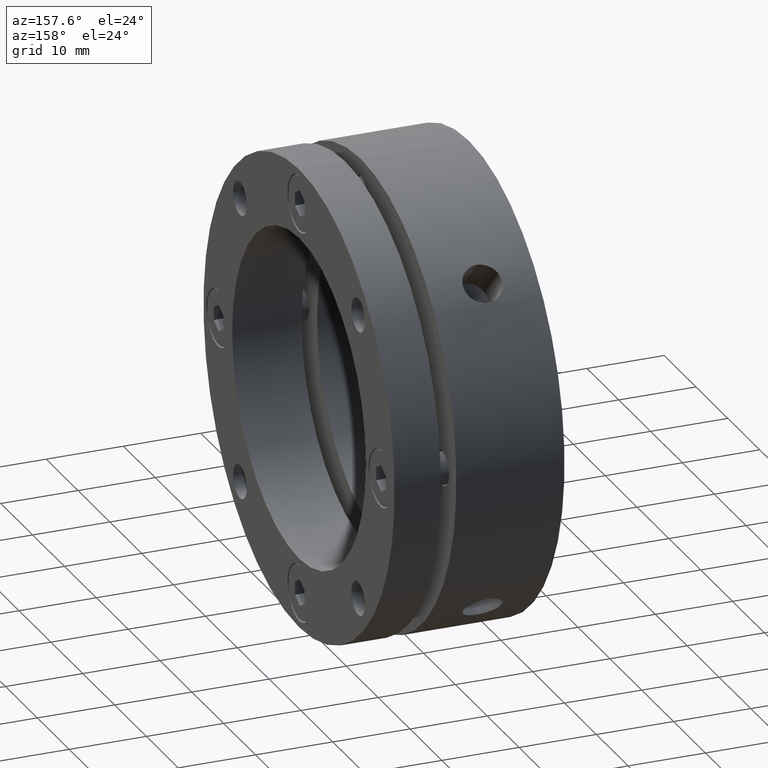
[diagram: clean part render]
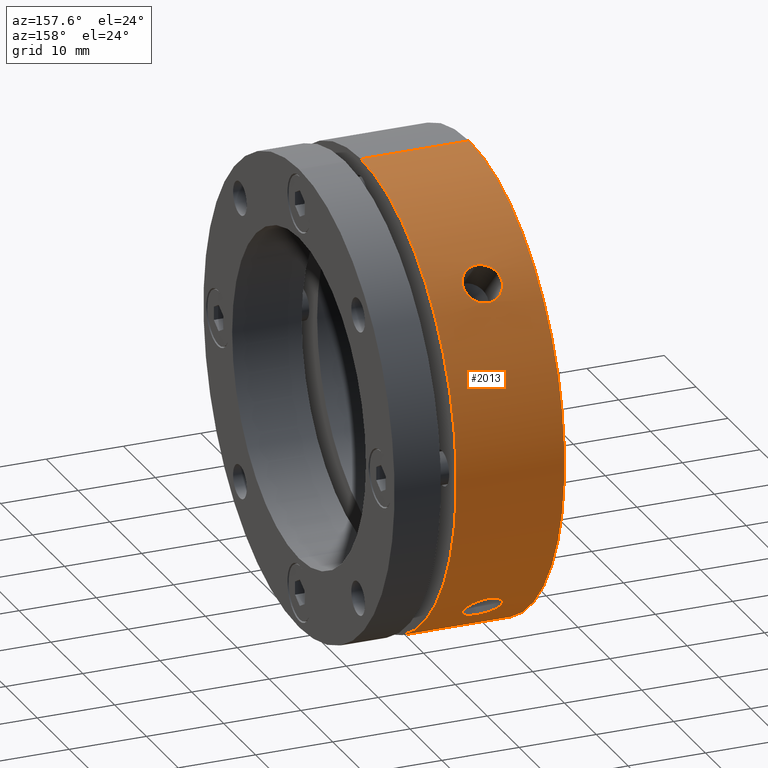
[diagram: same view with one face highlighted and labeled with its STEP entity id]
A machine part, auxiliary view. The second image highlights one B-rep face of the part: STEP entity #2013.
In plain terms, the highlighted cylindrical surface (partial cylindrical patch) has radius 30 mm, axis along (1, 0, 0).
Its self-contained STEP definition (entity closure, byte-faithful):
#173 = ORIENTED_EDGE ( 'NONE', *, *, #1893, .F. ) ;
#174 = ORIENTED_EDGE ( 'NONE', *, *, #1907, .T. ) ;
#175 = ORIENTED_EDGE ( 'NONE', *, *, #1903, .T. ) ;
#176 = ORIENTED_EDGE ( 'NONE', *, *, #1898, .T. ) ;
#177 = ORIENTED_EDGE ( 'NONE', *, *, #1920, .T. ) ;
#178 = ORIENTED_EDGE ( 'NONE', *, *, #1918, .T. ) ;
#179 = ORIENTED_EDGE ( 'NONE', *, *, #1916, .T. ) ;
#180 = ORIENTED_EDGE ( 'NONE', *, *, #1917, .T. ) ;
#318 = AXIS2_PLACEMENT_3D ( 'NONE', #3210, #3211, #3209 ) ;
#338 = CYLINDRICAL_SURFACE ( 'NONE', #318, 30.00000000000000000 ) ;
#340 = FACE_OUTER_BOUND ( 'NONE', #1150, .T. ) ;
#344 = FACE_BOUND ( 'NONE', #1169, .T. ) ;
#346 = FACE_BOUND ( 'NONE', #1171, .T. ) ;
#1150 = EDGE_LOOP ( 'NONE', ( #176, #175, #174, #173 ) ) ;
#1169 = EDGE_LOOP ( 'NONE', ( #180, #179 ) ) ;
#1171 = EDGE_LOOP ( 'NONE', ( #178, #177 ) ) ;
#1353 = B_SPLINE_CURVE_WITH_KNOTS ( 'NONE', 3,
 ( #3098, #3099, #3103, #3104, #3105, #3106, #3107, #3108, #3109, #3110, #3111, #3112, #3113, #3114, #3115, #3116, #3117, #3118, #3119, #3120, #3121, #3122, #3123, #3124, #3125, #3126, #3127, #3128, #3129, #3130, #3131, #3132, #3133, #3134 ),
 .UNSPECIFIED., .F., .F.,
 ( 4, 2, 2, 2, 2, 2, 2, 2, 2, 2, 2, 2, 2, 2, 2, 2, 4 ),
 ( 0.003910663658047632900, 0.004399278823582298200, 0.004887893989116963600, 0.005376509154651629000, 0.005865124320186294400, 0.006353739485720959700, 0.006842354651255625100, 0.007330969816790290500, 0.007819584982324955000, 0.008308200147859622100, 0.008796815313394285700, 0.009285430478928952800, 0.009774045644463616500, 0.01026266080999828400, 0.01075127597553294700, 0.01123989114106761400, 0.01172850630660227800 ),
 .UNSPECIFIED. ) ;
#1354 = B_SPLINE_CURVE_WITH_KNOTS ( 'NONE', 3,
 ( #2997, #2994, #2999, #3000, #3001, #3002, #3003, #3004, #3005, #3006, #3007, #3008, #3009, #3010, #3011, #3012, #3013, #3014, #3015, #3016, #3017, #3018, #3019, #3020, #3021, #3022, #3023, #3024, #3025, #3026, #3027, #3028, #3029, #3030 ),
 .UNSPECIFIED., .F., .F.,
 ( 4, 2, 2, 2, 2, 2, 2, 2, 2, 2, 2, 2, 2, 2, 2, 2, 4 ),
 ( 0.003910663658047624200, 0.004399278823582289600, 0.004887893989116955800, 0.005376509154651621200, 0.005865124320186286500, 0.006353739485720952800, 0.006842354651255618200, 0.007330969816790284400, 0.007819584982324949800, 0.008308200147859615100, 0.008796815313394282200, 0.009285430478928945900, 0.009774045644463613000, 0.01026266080999827800, 0.01075127597553294400, 0.01123989114106760700, 0.01172850630660227100 ),
 .UNSPECIFIED. ) ;
#1361 = B_SPLINE_CURVE_WITH_KNOTS ( 'NONE', 3,
 ( #2988, #2998, #3033, #3034, #3035, #3036, #3037, #3038, #3039, #3040, #3041, #3042, #3043, #3044, #3045, #3046, #3047, #3048, #3049, #3050, #3051, #3052, #3053, #3054, #3055, #3056, #3057, #3058, #3059, #3060, #3061, #3062, #3063, #3064 ),
 .UNSPECIFIED., .F., .F.,
 ( 4, 2, 2, 2, 2, 2, 2, 2, 2, 2, 2, 2, 2, 2, 2, 2, 4 ),
 ( 0.01172850630660226900, 0.01221712147181778200, 0.01270573663703329500, 0.01319435180224880900, 0.01368296696746432200, 0.01417158213267983400, 0.01466019729789534700, 0.01514881246311086000, 0.01563742762832637200, 0.01612604279354188500, 0.01661465795875739800, 0.01710327312397291000, 0.01759188828918842300, 0.01808050345440393900, 0.01856911861961945200, 0.01905773378483496500, 0.01954634895005047700 ),
 .UNSPECIFIED. ) ;
#1362 = B_SPLINE_CURVE_WITH_KNOTS ( 'NONE', 3,
 ( #3031, #3032, #3066, #3067, #3068, #3069, #3070, #3071, #3072, #3073, #3074, #3075, #3076, #3077, #3078, #3079, #3080, #3081, #3082, #3083, #3084, #3085, #3086, #3087, #3088, #3089, #3090, #3091, #3092, #3093, #3094, #3095, #3096, #3097 ),
 .UNSPECIFIED., .F., .F.,
 ( 4, 2, 2, 2, 2, 2, 2, 2, 2, 2, 2, 2, 2, 2, 2, 2, 4 ),
 ( 0.01172850630660228000, 0.01221712147181779200, 0.01270573663703330700, 0.01319435180224881900, 0.01368296696746433200, 0.01417158213267984500, 0.01466019729789535900, 0.01514881246311087200, 0.01563742762832638600, 0.01612604279354189900, 0.01661465795875741200, 0.01710327312397292400, 0.01759188828918843700, 0.01808050345440395000, 0.01856911861961946600, 0.01905773378483497900, 0.01954634895005049100 ),
 .UNSPECIFIED. ) ;
#1406 = VERTEX_POINT ( 'NONE', #2727 ) ;
#1411 = VERTEX_POINT ( 'NONE', #2718 ) ;
#1456 = VERTEX_POINT ( 'NONE', #2735 ) ;
#1459 = VERTEX_POINT ( 'NONE', #2732 ) ;
#1460 = VERTEX_POINT ( 'NONE', #2734 ) ;
#1473 = VERTEX_POINT ( 'NONE', #2737 ) ;
#1477 = VERTEX_POINT ( 'NONE', #2730 ) ;
#1501 = VERTEX_POINT ( 'NONE', #2753 ) ;
#1893 = EDGE_CURVE ( 'NONE', #1460, #1406, #3540, .T. ) ;
#1898 = EDGE_CURVE ( 'NONE', #1460, #1456, #3538, .T. ) ;
#1903 = EDGE_CURVE ( 'NONE', #1456, #1411, #3549, .T. ) ;
#1907 = EDGE_CURVE ( 'NONE', #1411, #1406, #3555, .T. ) ;
#1916 = EDGE_CURVE ( 'NONE', #1477, #1473, #1354, .T. ) ;
#1917 = EDGE_CURVE ( 'NONE', #1473, #1477, #1361, .T. ) ;
#1918 = EDGE_CURVE ( 'NONE', #1501, #1459, #1362, .T. ) ;
#1920 = EDGE_CURVE ( 'NONE', #1459, #1501, #1353, .T. ) ;
#2013 = ADVANCED_FACE ( 'NONE', ( #344, #346, #340 ), #338, .T. ) ;
#2718 = CARTESIAN_POINT ( 'NONE',  ( 14.00000000000000000, 3.673940397442059200E-015, 30.00000000000000000 ) ) ;
#2727 = CARTESIAN_POINT ( 'NONE',  ( 14.00000000000000000, 0.0000000000000000000, -30.00000000000000000 ) ) ;
#2730 = CARTESIAN_POINT ( 'NONE',  ( 6.999999999999992900, 22.90718510957607300, 19.37165120364333100 ) ) ;
#2732 = CARTESIAN_POINT ( 'NONE',  ( 6.999999999999992900, 19.37165120364333100, -22.90718510957607300 ) ) ;
#2734 = CARTESIAN_POINT ( 'NONE',  ( -8.673617379884035500E-015, 0.0000000000000000000, -30.00000000000000000 ) ) ;
#2735 = CARTESIAN_POINT ( 'NONE',  ( -8.673617379884035500E-015, 3.673940397442059200E-015, 30.00000000000000000 ) ) ;
#2737 = CARTESIAN_POINT ( 'NONE',  ( 6.999999999999992900, 19.37165120364333500, 22.90718510957606600 ) ) ;
#2753 = CARTESIAN_POINT ( 'NONE',  ( 6.999999999999992900, 22.90718510957606900, -19.37165120364333900 ) ) ;
#2875 = DIRECTION ( 'NONE',  ( 1.000000000000000000, 0.0000000000000000000, 0.0000000000000000000 ) ) ;
#2878 = CARTESIAN_POINT ( 'NONE',  ( 10.99999999999999300, 0.0000000000000000000, -30.00000000000000000 ) ) ;
#2886 = CARTESIAN_POINT ( 'NONE',  ( 10.99999999999999300, 3.673940397442059200E-015, 30.00000000000000000 ) ) ;
#2923 = CARTESIAN_POINT ( 'NONE',  ( -8.673617379884035500E-015, 0.0000000000000000000, 0.0000000000000000000 ) ) ;
#2924 = DIRECTION ( 'NONE',  ( 1.000000000000000000, 0.0000000000000000000, 0.0000000000000000000 ) ) ;
#2925 = DIRECTION ( 'NONE',  ( 0.0000000000000000000, 0.0000000000000000000, -1.000000000000000000 ) ) ;
#2935 = DIRECTION ( 'NONE',  ( 1.000000000000000000, 0.0000000000000000000, 0.0000000000000000000 ) ) ;
#2945 = CARTESIAN_POINT ( 'NONE',  ( 14.00000000000000000, 0.0000000000000000000, 0.0000000000000000000 ) ) ;
#2946 = DIRECTION ( 'NONE',  ( -1.000000000000000000, -0.0000000000000000000, -0.0000000000000000000 ) ) ;
#2947 = DIRECTION ( 'NONE',  ( 0.0000000000000000000, 0.0000000000000000000, -1.000000000000000000 ) ) ;
#2988 = CARTESIAN_POINT ( 'NONE',  ( 6.999999999999992900, 19.37165120364333500, 22.90718510957606600 ) ) ;
#2994 = CARTESIAN_POINT ( 'NONE',  ( 7.163105538181799400, 22.90718510957607300, 19.37165120364333100 ) ) ;
#2997 = CARTESIAN_POINT ( 'NONE',  ( 6.999999999999992900, 22.90718510957607300, 19.37165120364333100 ) ) ;
#2998 = CARTESIAN_POINT ( 'NONE',  ( 6.836894700547600400, 19.37165120364333900, 22.90718510957606900 ) ) ;
#2999 = CARTESIAN_POINT ( 'NONE',  ( 7.328779224750092200, 22.89661357285002200, 19.38417180015198200 ) ) ;
#3000 = CARTESIAN_POINT ( 'NONE',  ( 7.649383499610918200, 22.85509779051097800, 19.43310408731471700 ) ) ;
#3001 = CARTESIAN_POINT ( 'NONE',  ( 7.805217417415984300, 22.82438044525099500, 19.46924777814290800 ) ) ;
#3002 = CARTESIAN_POINT ( 'NONE',  ( 8.107901180360109100, 22.74258735149684800, 19.56473031543789500 ) ) ;
#3003 = CARTESIAN_POINT ( 'NONE',  ( 8.254155664859011300, 22.69135485746316000, 19.62423617146452400 ) ) ;
#3004 = CARTESIAN_POINT ( 'NONE',  ( 8.524887027766089500, 22.57225020373851600, 19.76111715770542400 ) ) ;
#3005 = CARTESIAN_POINT ( 'NONE',  ( 8.651096218718100400, 22.50397358111146000, 19.83897269496314300 ) ) ;
#3006 = CARTESIAN_POINT ( 'NONE',  ( 8.884475733340577700, 22.34868696919204100, 20.01374166126667800 ) ) ;
#3007 = CARTESIAN_POINT ( 'NONE',  ( 8.987871681798555600, 22.26416654470176600, 20.10784040620759000 ) ) ;
#3008 = CARTESIAN_POINT ( 'NONE',  ( 9.168832182704781200, 22.08163363437640200, 20.30812186709813000 ) ) ;
#3009 = CARTESIAN_POINT ( 'NONE',  ( 9.247083408198188100, 21.98241635808737400, 20.41559010135178900 ) ) ;
#3010 = CARTESIAN_POINT ( 'NONE',  ( 9.372483633479701500, 21.77512169402642100, 20.63654581893636900 ) ) ;
#3011 = CARTESIAN_POINT ( 'NONE',  ( 9.419741051201851800, 21.66763652644372900, 20.74943862536838800 ) ) ;
#3012 = CARTESIAN_POINT ( 'NONE',  ( 9.483658523332563200, 21.44475133602965000, 20.97971201055587900 ) ) ;
#3013 = CARTESIAN_POINT ( 'NONE',  ( 9.500116543866353100, 21.32877192758936100, 21.09764867842641700 ) ) ;
#3014 = CARTESIAN_POINT ( 'NONE',  ( 9.499882198476855800, 21.09512722456828400, 21.33126576358537800 ) ) ;
#3015 = CARTESIAN_POINT ( 'NONE',  ( 9.483553047503853900, 20.97930234141864900, 21.44514877648675400 ) ) ;
#3016 = CARTESIAN_POINT ( 'NONE',  ( 9.419797245789295600, 20.74967077353989400, 21.66741091058202800 ) ) ;
#3017 = CARTESIAN_POINT ( 'NONE',  ( 9.371589422166460200, 20.63464343284202600, 21.77692363346963200 ) ) ;
#3018 = CARTESIAN_POINT ( 'NONE',  ( 9.245902651748203000, 20.41384183252238300, 21.98403907782320500 ) ) ;
#3019 = CARTESIAN_POINT ( 'NONE',  ( 9.169026150545471800, 20.30831874024471200, 22.08145528509409400 ) ) ;
#3020 = CARTESIAN_POINT ( 'NONE',  ( 8.987442830375432100, 20.10738359425553100, 22.26458179612740600 ) ) ;
#3021 = CARTESIAN_POINT ( 'NONE',  ( 8.881826724277937400, 20.01163615549786800, 22.35056437251759900 ) ) ;
#3022 = CARTESIAN_POINT ( 'NONE',  ( 8.651164096809886000, 19.83914666146511500, 22.50381232446982300 ) ) ;
#3023 = CARTESIAN_POINT ( 'NONE',  ( 8.525300567668345800, 19.76126312680644800, 22.57212561688088900 ) ) ;
#3024 = CARTESIAN_POINT ( 'NONE',  ( 8.251945290952891200, 19.62318214463961400, 22.69226955924480300 ) ) ;
#3025 = CARTESIAN_POINT ( 'NONE',  ( 8.106530202867167700, 19.56427236512423900, 22.74298014917461700 ) ) ;
#3026 = CARTESIAN_POINT ( 'NONE',  ( 7.805700995315485000, 19.46942587073627700, 22.82422738027336000 ) ) ;
#3027 = CARTESIAN_POINT ( 'NONE',  ( 7.648060807944369300, 19.43277905299464700, 22.85537422223598400 ) ) ;
#3028 = CARTESIAN_POINT ( 'NONE',  ( 7.325347344419744100, 19.38377299516970400, 22.89695126065229000 ) ) ;
#3029 = CARTESIAN_POINT ( 'NONE',  ( 7.163105299558923300, 19.37165120364333900, 22.90718510957606600 ) ) ;
#3030 = CARTESIAN_POINT ( 'NONE',  ( 6.999999999999992900, 19.37165120364333500, 22.90718510957606600 ) ) ;
#3031 = CARTESIAN_POINT ( 'NONE',  ( 6.999999999999992900, 22.90718510957606900, -19.37165120364333900 ) ) ;
#3032 = CARTESIAN_POINT ( 'NONE',  ( 6.836894700547601300, 22.90718510957606900, -19.37165120364333900 ) ) ;
#3033 = CARTESIAN_POINT ( 'NONE',  ( 6.671221257707832900, 19.38417176302243300, 22.89661360415437100 ) ) ;
#3034 = CARTESIAN_POINT ( 'NONE',  ( 6.350617425688485100, 19.43310390958521000, 22.85509794150020500 ) ) ;
#3035 = CARTESIAN_POINT ( 'NONE',  ( 6.194783716693790700, 19.46924749727403600, 22.82438068432816900 ) ) ;
#3036 = CARTESIAN_POINT ( 'NONE',  ( 5.892100343668777100, 19.56472975778931200, 22.74258783071788100 ) ) ;
#3037 = CARTESIAN_POINT ( 'NONE',  ( 5.745846001376011500, 19.62423545354951700, 22.69135547735401600 ) ) ;
#3038 = CARTESIAN_POINT ( 'NONE',  ( 5.475114872303452200, 19.76111607250889800, 22.57225115279432300 ) ) ;
#3039 = CARTESIAN_POINT ( 'NONE',  ( 5.348905772578898000, 19.83897140071788500, 22.50397472037905200 ) ) ;
#3040 = CARTESIAN_POINT ( 'NONE',  ( 5.115526374395368900, 20.01373988590686200, 22.34868855734541500 ) ) ;
#3041 = CARTESIAN_POINT ( 'NONE',  ( 5.012130362257663000, 20.10783844428337700, 22.26416831458683600 ) ) ;
#3042 = CARTESIAN_POINT ( 'NONE',  ( 4.831169746185581800, 20.30811943189506500, 22.08163587195340200 ) ) ;
#3043 = CARTESIAN_POINT ( 'NONE',  ( 4.752918425768972300, 20.41558739538758300, 21.98241886911594300 ) ) ;
#3044 = CARTESIAN_POINT ( 'NONE',  ( 4.627517836316943800, 20.63654270366884400, 21.77512464431892200 ) ) ;
#3045 = CARTESIAN_POINT ( 'NONE',  ( 4.580260200849641800, 20.74943530156134100, 21.66763970699688400 ) ) ;
#3046 = CARTESIAN_POINT ( 'NONE',  ( 4.516342189234553200, 20.97970825653213800, 21.44475500621785400 ) ) ;
#3047 = CARTESIAN_POINT ( 'NONE',  ( 4.499883834946281500, 21.09764433914214600, 21.32877622223017200 ) ) ;
#3048 = CARTESIAN_POINT ( 'NONE',  ( 4.500117414499267300, 21.33126190377246100, 21.09513112999236400 ) ) ;
#3049 = CARTESIAN_POINT ( 'NONE',  ( 4.516446248430278300, 21.44514514449110700, 20.97930605625762700 ) ) ;
#3050 = CARTESIAN_POINT ( 'NONE',  ( 4.580201500392898400, 21.66740771707015200, 20.74967411051718400 ) ) ;
#3051 = CARTESIAN_POINT ( 'NONE',  ( 4.628409080404232200, 21.77692064744344000, 20.63464658679868400 ) ) ;
#3052 = CARTESIAN_POINT ( 'NONE',  ( 4.754095537332382500, 21.98403661210757300, 20.41384449055701500 ) ) ;
#3053 = CARTESIAN_POINT ( 'NONE',  ( 4.830971930617554500, 22.08145305637848200, 20.30832116564056000 ) ) ;
#3054 = CARTESIAN_POINT ( 'NONE',  ( 5.012555105402102900, 22.26458000792704400, 20.10738557641112900 ) ) ;
#3055 = CARTESIAN_POINT ( 'NONE',  ( 5.118171207639495200, 22.35056281768357800, 20.01163789383246800 ) ) ;
#3056 = CARTESIAN_POINT ( 'NONE',  ( 5.348833923572705400, 22.50381119008425300, 19.83914795000356100 ) ) ;
#3057 = CARTESIAN_POINT ( 'NONE',  ( 5.474697529445543300, 22.57212466538898000, 19.76126421475496300 ) ) ;
#3058 = CARTESIAN_POINT ( 'NONE',  ( 5.748053014275143400, 22.69226892950791800, 19.62318287399132200 ) ) ;
#3059 = CARTESIAN_POINT ( 'NONE',  ( 5.893468293072760200, 22.74297967647200000, 19.56427291519543500 ) ) ;
#3060 = CARTESIAN_POINT ( 'NONE',  ( 6.194297869247016300, 22.82422714010622400, 19.46942615285583900 ) ) ;
#3061 = CARTESIAN_POINT ( 'NONE',  ( 6.351938250832660900, 22.85537406943897300, 19.43277923286016000 ) ) ;
#3062 = CARTESIAN_POINT ( 'NONE',  ( 6.674652181047235900, 22.89695123104916200, 19.38377303029575000 ) ) ;
#3063 = CARTESIAN_POINT ( 'NONE',  ( 6.836894461924724300, 22.90718510957607600, 19.37165120364333500 ) ) ;
#3064 = CARTESIAN_POINT ( 'NONE',  ( 6.999999999999992900, 22.90718510957607300, 19.37165120364333100 ) ) ;
#3066 = CARTESIAN_POINT ( 'NONE',  ( 6.671221257707835600, 22.89661360415437100, -19.38417176302243300 ) ) ;
#3067 = CARTESIAN_POINT ( 'NONE',  ( 6.350617425688486900, 22.85509794150020500, -19.43310390958521000 ) ) ;
#3068 = CARTESIAN_POINT ( 'NONE',  ( 6.194783716693788900, 22.82438068432816500, -19.46924749727403600 ) ) ;
#3069 = CARTESIAN_POINT ( 'NONE',  ( 5.892100343668774400, 22.74258783071787700, -19.56472975778931200 ) ) ;
#3070 = CARTESIAN_POINT ( 'NONE',  ( 5.745846001376013300, 22.69135547735401600, -19.62423545354951700 ) ) ;
#3071 = CARTESIAN_POINT ( 'NONE',  ( 5.475114872303454000, 22.57225115279431900, -19.76111607250889800 ) ) ;
#3072 = CARTESIAN_POINT ( 'NONE',  ( 5.348905772578900700, 22.50397472037905200, -19.83897140071788500 ) ) ;
#3073 = CARTESIAN_POINT ( 'NONE',  ( 5.115526374395371600, 22.34868855734542600, -20.01373988590686200 ) ) ;
#3074 = CARTESIAN_POINT ( 'NONE',  ( 5.012130362257663800, 22.26416831458684000, -20.10783844428338100 ) ) ;
#3075 = CARTESIAN_POINT ( 'NONE',  ( 4.831169746185584500, 22.08163587195340200, -20.30811943189506500 ) ) ;
#3076 = CARTESIAN_POINT ( 'NONE',  ( 4.752918425768972300, 21.98241886911594300, -20.41558739538758300 ) ) ;
#3077 = CARTESIAN_POINT ( 'NONE',  ( 4.627517836316944700, 21.77512464431891500, -20.63654270366884100 ) ) ;
#3078 = CARTESIAN_POINT ( 'NONE',  ( 4.580260200849642700, 21.66763970699688700, -20.74943530156134500 ) ) ;
#3079 = CARTESIAN_POINT ( 'NONE',  ( 4.516342189234553200, 21.44475500621785400, -20.97970825653213100 ) ) ;
#3080 = CARTESIAN_POINT ( 'NONE',  ( 4.499883834946282400, 21.32877622223017200, -21.09764433914213900 ) ) ;
#3081 = CARTESIAN_POINT ( 'NONE',  ( 4.500117414499269100, 21.09513112999237800, -21.33126190377246400 ) ) ;
#3082 = CARTESIAN_POINT ( 'NONE',  ( 4.516446248430277400, 20.97930605625762700, -21.44514514449110400 ) ) ;
#3083 = CARTESIAN_POINT ( 'NONE',  ( 4.580201500392894000, 20.74967411051718400, -21.66740771707015200 ) ) ;
#3084 = CARTESIAN_POINT ( 'NONE',  ( 4.628409080404231300, 20.63464658679868800, -21.77692064744343600 ) ) ;
#3085 = CARTESIAN_POINT ( 'NONE',  ( 4.754095537332379900, 20.41384449055702200, -21.98403661210756300 ) ) ;
#3086 = CARTESIAN_POINT ( 'NONE',  ( 4.830971930617554500, 20.30832116564056000, -22.08145305637847900 ) ) ;
#3087 = CARTESIAN_POINT ( 'NONE',  ( 5.012555105402104700, 20.10738557641112900, -22.26458000792704100 ) ) ;
#3088 = CARTESIAN_POINT ( 'NONE',  ( 5.118171207639497800, 20.01163789383246400, -22.35056281768358800 ) ) ;
#3089 = CARTESIAN_POINT ( 'NONE',  ( 5.348833923572708900, 19.83914795000355400, -22.50381119008424900 ) ) ;
#3090 = CARTESIAN_POINT ( 'NONE',  ( 5.474697529445541600, 19.76126421475496600, -22.57212466538898400 ) ) ;
#3091 = CARTESIAN_POINT ( 'NONE',  ( 5.748053014275142500, 19.62318287399132200, -22.69226892950791800 ) ) ;
#3092 = CARTESIAN_POINT ( 'NONE',  ( 5.893468293072758400, 19.56427291519543500, -22.74297967647200000 ) ) ;
#3093 = CARTESIAN_POINT ( 'NONE',  ( 6.194297869247015400, 19.46942615285583500, -22.82422714010622400 ) ) ;
#3094 = CARTESIAN_POINT ( 'NONE',  ( 6.351938250832654700, 19.43277923286016000, -22.85537406943897300 ) ) ;
#3095 = CARTESIAN_POINT ( 'NONE',  ( 6.674652181047228800, 19.38377303029574600, -22.89695123104916200 ) ) ;
#3096 = CARTESIAN_POINT ( 'NONE',  ( 6.836894461924722500, 19.37165120364333100, -22.90718510957607600 ) ) ;
#3097 = CARTESIAN_POINT ( 'NONE',  ( 6.999999999999992900, 19.37165120364333100, -22.90718510957607300 ) ) ;
#3098 = CARTESIAN_POINT ( 'NONE',  ( 6.999999999999992900, 19.37165120364333100, -22.90718510957607300 ) ) ;
#3099 = CARTESIAN_POINT ( 'NONE',  ( 7.163105538181798500, 19.37165120364333100, -22.90718510957607300 ) ) ;
#3103 = CARTESIAN_POINT ( 'NONE',  ( 7.328779224750094000, 19.38417180015198900, -22.89661357285003300 ) ) ;
#3104 = CARTESIAN_POINT ( 'NONE',  ( 7.649383499610917300, 19.43310408731471400, -22.85509779051097100 ) ) ;
#3105 = CARTESIAN_POINT ( 'NONE',  ( 7.805217417415984300, 19.46924777814290800, -22.82438044525099500 ) ) ;
#3106 = CARTESIAN_POINT ( 'NONE',  ( 8.107901180360107300, 19.56473031543789500, -22.74258735149684100 ) ) ;
#3107 = CARTESIAN_POINT ( 'NONE',  ( 8.254155664859011300, 19.62423617146452400, -22.69135485746316000 ) ) ;
#3108 = CARTESIAN_POINT ( 'NONE',  ( 8.524887027766091300, 19.76111715770542800, -22.57225020373851600 ) ) ;
#3109 = CARTESIAN_POINT ( 'NONE',  ( 8.651096218718102200, 19.83897269496315000, -22.50397358111147000 ) ) ;
#3110 = CARTESIAN_POINT ( 'NONE',  ( 8.884475733340574200, 20.01374166126668500, -22.34868696919205200 ) ) ;
#3111 = CARTESIAN_POINT ( 'NONE',  ( 8.987871681798557300, 20.10784040620759000, -22.26416654470176600 ) ) ;
#3112 = CARTESIAN_POINT ( 'NONE',  ( 9.168832182704781200, 20.30812186709812700, -22.08163363437639900 ) ) ;
#3113 = CARTESIAN_POINT ( 'NONE',  ( 9.247083408198189900, 20.41559010135179300, -21.98241635808737000 ) ) ;
#3114 = CARTESIAN_POINT ( 'NONE',  ( 9.372483633479699700, 20.63654581893636900, -21.77512169402642400 ) ) ;
#3115 = CARTESIAN_POINT ( 'NONE',  ( 9.419741051201853600, 20.74943862536838800, -21.66763652644372900 ) ) ;
#3116 = CARTESIAN_POINT ( 'NONE',  ( 9.483658523332559700, 20.97971201055587500, -21.44475133602964700 ) ) ;
#3117 = CARTESIAN_POINT ( 'NONE',  ( 9.500116543866353100, 21.09764867842642000, -21.32877192758935800 ) ) ;
#3118 = CARTESIAN_POINT ( 'NONE',  ( 9.499882198476855800, 21.33126576358538200, -21.09512722456828700 ) ) ;
#3119 = CARTESIAN_POINT ( 'NONE',  ( 9.483553047503850300, 21.44514877648675700, -20.97930234141863800 ) ) ;
#3120 = CARTESIAN_POINT ( 'NONE',  ( 9.419797245789290200, 21.66741091058203500, -20.74967077353988600 ) ) ;
#3121 = CARTESIAN_POINT ( 'NONE',  ( 9.371589422166462000, 21.77692363346962900, -20.63464343284202200 ) ) ;
#3122 = CARTESIAN_POINT ( 'NONE',  ( 9.245902651748203000, 21.98403907782321200, -20.41384183252237600 ) ) ;
#3123 = CARTESIAN_POINT ( 'NONE',  ( 9.169026150545470000, 22.08145528509409400, -20.30831874024471200 ) ) ;
#3124 = CARTESIAN_POINT ( 'NONE',  ( 8.987442830375430300, 22.26458179612740600, -20.10738359425552700 ) ) ;
#3125 = CARTESIAN_POINT ( 'NONE',  ( 8.881826724277930300, 22.35056437251759900, -20.01163615549786500 ) ) ;
#3126 = CARTESIAN_POINT ( 'NONE',  ( 8.651164096809887700, 22.50381232446982300, -19.83914666146511200 ) ) ;
#3127 = CARTESIAN_POINT ( 'NONE',  ( 8.525300567668342200, 22.57212561688088900, -19.76126312680645100 ) ) ;
#3128 = CARTESIAN_POINT ( 'NONE',  ( 8.251945290952887600, 22.69226955924480300, -19.62318214463959600 ) ) ;
#3129 = CARTESIAN_POINT ( 'NONE',  ( 8.106530202867164200, 22.74298014917462400, -19.56427236512423900 ) ) ;
#3130 = CARTESIAN_POINT ( 'NONE',  ( 7.805700995315481400, 22.82422738027334600, -19.46942587073627400 ) ) ;
#3131 = CARTESIAN_POINT ( 'NONE',  ( 7.648060807944370200, 22.85537422223598000, -19.43277905299464300 ) ) ;
#3132 = CARTESIAN_POINT ( 'NONE',  ( 7.325347344419743200, 22.89695126065228700, -19.38377299516970000 ) ) ;
#3133 = CARTESIAN_POINT ( 'NONE',  ( 7.163105299558923300, 22.90718510957606600, -19.37165120364334600 ) ) ;
#3134 = CARTESIAN_POINT ( 'NONE',  ( 6.999999999999992900, 22.90718510957606900, -19.37165120364333900 ) ) ;
#3209 = DIRECTION ( 'NONE',  ( 0.0000000000000000000, 0.0000000000000000000, -1.000000000000000000 ) ) ;
#3210 = CARTESIAN_POINT ( 'NONE',  ( 10.99999999999999300, 0.0000000000000000000, 0.0000000000000000000 ) ) ;
#3211 = DIRECTION ( 'NONE',  ( 1.000000000000000000, 0.0000000000000000000, 0.0000000000000000000 ) ) ;
#3418 = AXIS2_PLACEMENT_3D ( 'NONE', #2945, #2946, #2947 ) ;
#3421 = AXIS2_PLACEMENT_3D ( 'NONE', #2923, #2924, #2925 ) ;
#3538 = CIRCLE ( 'NONE', #3421, 30.00000000000000000 ) ;
#3540 = LINE ( 'NONE', #2878, #3543 ) ;
#3543 = VECTOR ( 'NONE', #2875, 1000.000000000000000 ) ;
#3549 = LINE ( 'NONE', #2886, #3558 ) ;
#3555 = CIRCLE ( 'NONE', #3418, 30.00000000000000000 ) ;
#3558 = VECTOR ( 'NONE', #2935, 1000.000000000000000 ) ;